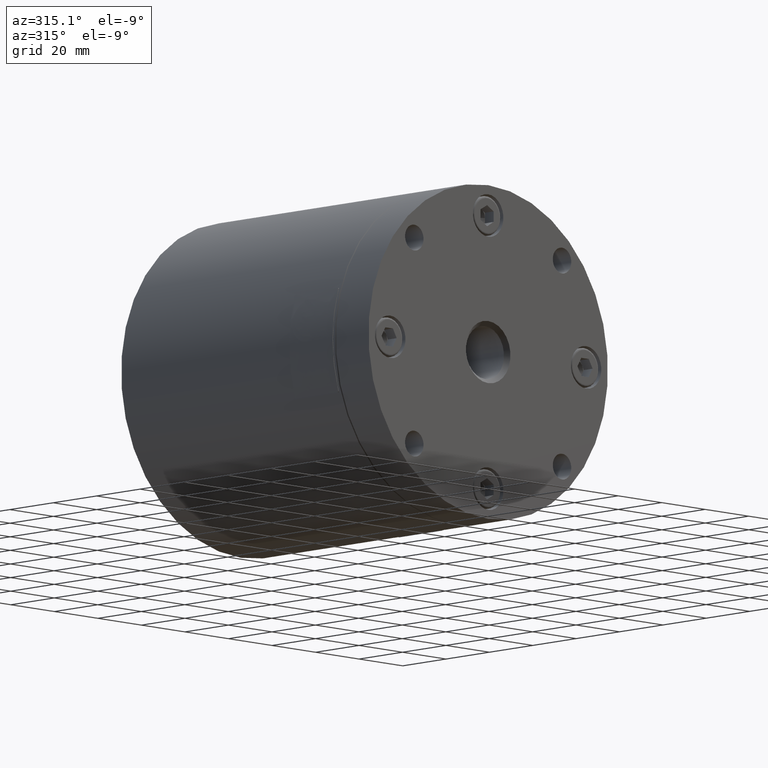
[diagram: clean part render]
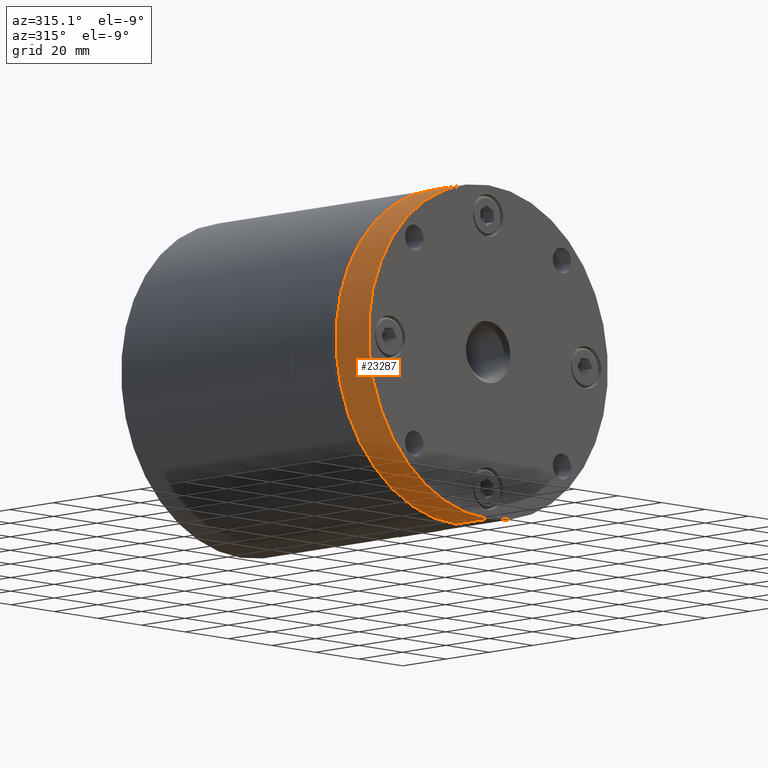
[diagram: same view with one face highlighted and labeled with its STEP entity id]
A machine part, auxiliary view. The second image highlights one B-rep face of the part: STEP entity #23287.
In plain terms, the highlighted cylindrical surface (partial cylindrical patch) has radius 55 mm, axis along (0, -1, 0).
Its self-contained STEP definition (entity closure, byte-faithful):
#667 = DIRECTION ( 'NONE',  ( 0.0000000000000000000, -1.000000000000000000, 0.0000000000000000000 ) ) ;
#978 = FACE_OUTER_BOUND ( 'NONE', #17270, .T. ) ;
#1511 = CARTESIAN_POINT ( 'NONE',  ( 0.0000000000000000000, 15.00000000000000000, -55.00000000000000000 ) ) ;
#2859 = CARTESIAN_POINT ( 'NONE',  ( 0.0000000000000000000, 15.00000000000000000, 0.0000000000000000000 ) ) ;
#4018 = VECTOR ( 'NONE', #12490, 1000.000000000000000 ) ;
#4035 = CARTESIAN_POINT ( 'NONE',  ( 6.735557395310442600E-015, 44.00000000000000000, 55.00000000000000000 ) ) ;
#4742 = ORIENTED_EDGE ( 'NONE', *, *, #32735, .T. ) ;
#6346 = ORIENTED_EDGE ( 'NONE', *, *, #11357, .F. ) ;
#6430 = DIRECTION ( 'NONE',  ( 0.0000000000000000000, 0.0000000000000000000, -1.000000000000000000 ) ) ;
#8275 = CIRCLE ( 'NONE', #23603, 55.00000000000000000 ) ;
#9537 = VERTEX_POINT ( 'NONE', #31259 ) ;
#11357 = EDGE_CURVE ( 'NONE', #9537, #12694, #32548, .T. ) ;
#12032 = VERTEX_POINT ( 'NONE', #1511 ) ;
#12368 = EDGE_CURVE ( 'NONE', #12032, #35360, #28603, .T. ) ;
#12490 = DIRECTION ( 'NONE',  ( 0.0000000000000000000, -1.000000000000000000, 0.0000000000000000000 ) ) ;
#12531 = VECTOR ( 'NONE', #30276, 1000.000000000000000 ) ;
#12694 = VERTEX_POINT ( 'NONE', #37653 ) ;
#14418 = ORIENTED_EDGE ( 'NONE', *, *, #12368, .T. ) ;
#15560 = CIRCLE ( 'NONE', #25511, 55.00000000000000000 ) ;
#17270 = EDGE_LOOP ( 'NONE', ( #6346, #25510, #14418, #4742 ) ) ;
#18018 = CARTESIAN_POINT ( 'NONE',  ( 0.0000000000000000000, 44.00000000000000000, 0.0000000000000000000 ) ) ;
#20457 = DIRECTION ( 'NONE',  ( 0.0000000000000000000, 1.000000000000000000, 0.0000000000000000000 ) ) ;
#21153 = DIRECTION ( 'NONE',  ( 0.0000000000000000000, 0.0000000000000000000, 1.000000000000000000 ) ) ;
#23287 = ADVANCED_FACE ( 'NONE', ( #978 ), #26062, .T. ) ;
#23603 = AXIS2_PLACEMENT_3D ( 'NONE', #35653, #33088, #21153 ) ;
#25510 = ORIENTED_EDGE ( 'NONE', *, *, #31954, .F. ) ;
#25511 = AXIS2_PLACEMENT_3D ( 'NONE', #2859, #20457, #32172 ) ;
#26062 = CYLINDRICAL_SURFACE ( 'NONE', #34157, 55.00000000000000000 ) ;
#26708 = CARTESIAN_POINT ( 'NONE',  ( 0.0000000000000000000, 0.0000000000000000000, -55.00000000000000000 ) ) ;
#28603 = LINE ( 'NONE', #33067, #4018 ) ;
#30276 = DIRECTION ( 'NONE',  ( 0.0000000000000000000, -1.000000000000000000, 0.0000000000000000000 ) ) ;
#31259 = CARTESIAN_POINT ( 'NONE',  ( 6.735557395310442600E-015, 15.00000000000000000, 55.00000000000000000 ) ) ;
#31954 = EDGE_CURVE ( 'NONE', #12032, #9537, #15560, .T. ) ;
#32172 = DIRECTION ( 'NONE',  ( 0.0000000000000000000, 0.0000000000000000000, 1.000000000000000000 ) ) ;
#32548 = LINE ( 'NONE', #4035, #12531 ) ;
#32735 = EDGE_CURVE ( 'NONE', #35360, #12694, #8275, .T. ) ;
#33067 = CARTESIAN_POINT ( 'NONE',  ( 0.0000000000000000000, 44.00000000000000000, -55.00000000000000000 ) ) ;
#33088 = DIRECTION ( 'NONE',  ( 0.0000000000000000000, 1.000000000000000000, 0.0000000000000000000 ) ) ;
#34157 = AXIS2_PLACEMENT_3D ( 'NONE', #18018, #667, #6430 ) ;
#35360 = VERTEX_POINT ( 'NONE', #26708 ) ;
#35653 = CARTESIAN_POINT ( 'NONE',  ( 0.0000000000000000000, 0.0000000000000000000, 0.0000000000000000000 ) ) ;
#37653 = CARTESIAN_POINT ( 'NONE',  ( 6.735557395310442600E-015, 0.0000000000000000000, 55.00000000000000000 ) ) ;